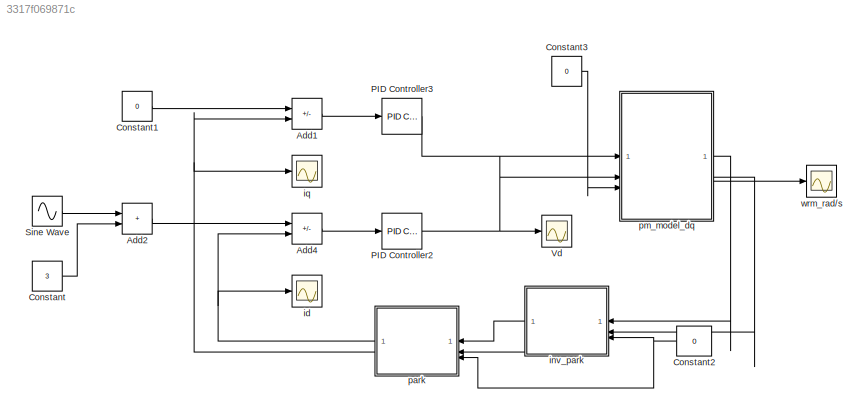
MODEL slx_3317f069871c
KIND model
CONFIG AbsTol = auto
CONFIG EnableMultiTasking = off
CONFIG FixedStep = 0.00025
CONFIG MaxStep = auto
CONFIG MinStep = auto
CONFIG RelTol = 1e-3
CONFIG SampleTimeConstraint = Unconstrained
CONFIG SolverName = FixedStepAuto
CONFIG StartTime = 0.0
CONFIG StopTime = 0.2
BLOCK [Sum] Add1
  IconShape = rectangular
  Inputs = +-
BLOCK [Sum] Add2
  IconShape = rectangular
BLOCK [Sum] Add4
  IconShape = rectangular
  Inputs = +-
BLOCK [Constant] Constant
  Value = 3
BLOCK [Constant] Constant1
  Value = 0
BLOCK [Constant] Constant2
  Value = 0
BLOCK [Constant] Constant3
  Value = 0
BLOCK [Reference] PID Controller2  REF=slpidlib/PID Controller
  LibrarySourceBlock = simulink/Continuous/PID Controller
  SourceBlock = slpidlib/PID Controller
  SourceType = PID 1dof
BLOCK [Reference] PID Controller3  REF=slpidlib/PID Controller
  LibrarySourceBlock = simulink/Continuous/PID Controller
  SourceBlock = slpidlib/PID Controller
  SourceType = PID 1dof
BLOCK [Sin] Sine Wave
  Frequency = 2*pi*100
  SampleTime = 0
BLOCK [Scope] Vd
  Floating = off
  NumInputPorts = 1
  ScopeSpecificationString = Simulink.scopes.TimeScopeBlockCfg('CurrentConfiguration', extmgr.ConfigurationSet(extmgr.Configuration('Core','General UI',true,'FigureColor',[1 1 1]),extmgr.Configuration('Core','Source UI',true),extmgr.Configuration('Sources','WiredSimulink',true,'DataLoggingVariableName','ScopeData1'),extmgr.Configuration('Visuals','Time Domain',true,'SerializedDisplays',{struct('MinYLimReal','0.09342','MaxYLim...<+1561ch>
BLOCK [Scope] id
  Floating = off
  NumInputPorts = 1
  ScopeSpecificationString = Simulink.scopes.TimeScopeBlockCfg('CurrentConfiguration', extmgr.ConfigurationSet(extmgr.Configuration('Core','General UI',true,'FigureColor',[1 1 1]),extmgr.Configuration('Core','Source UI',true),extmgr.Configuration('Sources','WiredSimulink',true,'DataLoggingVariableName','ScopeData4'),extmgr.Configuration('Visuals','Time Domain',true,'SerializedDisplays',{struct('MinYLimReal','2.04049','MaxYLim...<+1556ch>
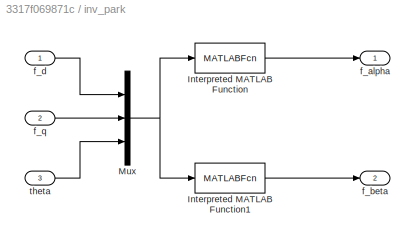
BLOCK [SubSystem] inv_park
BLOCK [MATLABFcn] inv_park/Interpreted MATLAB Function
  MATLABFcn = cos(u(3))*u(1)-sin(u(3))*u(2)
BLOCK [MATLABFcn] inv_park/Interpreted MATLAB Function1
  MATLABFcn = sin(u(3))*u(1)+cos(u(3))*u(2)
BLOCK [Mux] inv_park/Mux
  DisplayOption = bar
  Inputs = 3
BLOCK [Outport] inv_park/f_alpha
BLOCK [Outport] inv_park/f_beta
  Port = 2
BLOCK [Inport] inv_park/f_d
BLOCK [Inport] inv_park/f_q
  Port = 2
BLOCK [Inport] inv_park/theta
  Port = 3
BLOCK [Scope] iq
  Floating = off
  NumInputPorts = 1
  ScopeSpecificationString = Simulink.scopes.TimeScopeBlockCfg('CurrentConfiguration', extmgr.ConfigurationSet(extmgr.Configuration('Core','General UI',true,'FigureColor',[1 1 1]),extmgr.Configuration('Core','Source UI',true),extmgr.Configuration('Sources','WiredSimulink',true,'DataLoggingVariableName','ScopeData1'),extmgr.Configuration('Visuals','Time Domain',true,'SerializedDisplays',{struct('MinYLimReal','-0.70231','MaxYLi...<+1565ch>
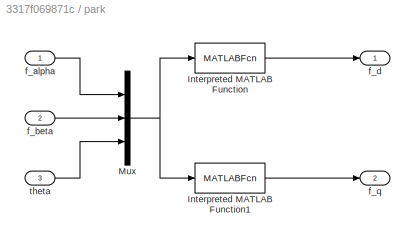
BLOCK [SubSystem] park
BLOCK [MATLABFcn] park/Interpreted MATLAB Function
  MATLABFcn = cos(u(3))*u(1)+sin(u(3))*u(2)
BLOCK [MATLABFcn] park/Interpreted MATLAB Function1
  MATLABFcn = -sin(u(3))*u(1)+cos(u(3))*u(2)
BLOCK [Mux] park/Mux
  DisplayOption = bar
  Inputs = 3
BLOCK [Inport] park/f_alpha
BLOCK [Inport] park/f_beta
  Port = 2
BLOCK [Outport] park/f_d
BLOCK [Outport] park/f_q
  Port = 2
BLOCK [Inport] park/theta
  Port = 3
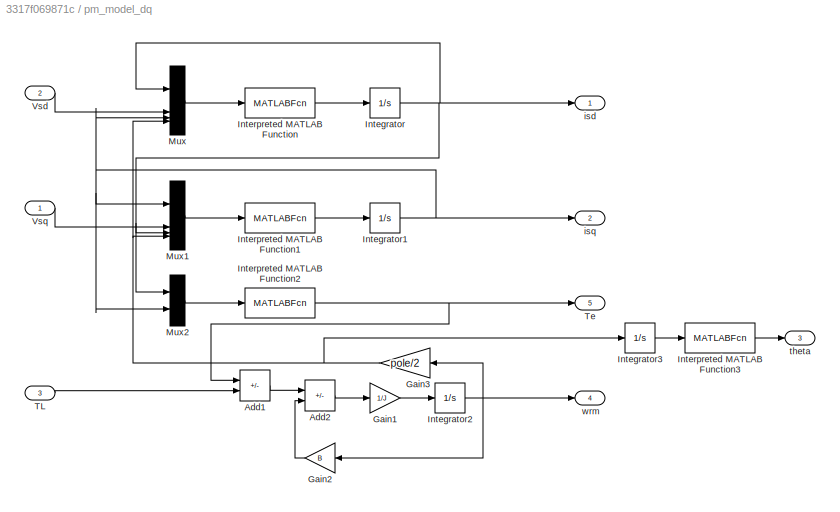
BLOCK [SubSystem] pm_model_dq
BLOCK [Sum] pm_model_dq/Add1
  IconShape = rectangular
  Inputs = +-
BLOCK [Sum] pm_model_dq/Add2
  IconShape = rectangular
  Inputs = +-
BLOCK [Gain] pm_model_dq/Gain1
  Gain = 1/J
BLOCK [Gain] pm_model_dq/Gain2
  Gain = B
  NameLocation = top
BLOCK [Gain] pm_model_dq/Gain3
  Gain = pole/2
BLOCK [Integrator] pm_model_dq/Integrator
BLOCK [Integrator] pm_model_dq/Integrator1
BLOCK [Integrator] pm_model_dq/Integrator2
BLOCK [Integrator] pm_model_dq/Integrator3
BLOCK [MATLABFcn] pm_model_dq/Interpreted MATLAB Function
  MATLABFcn = -(Rs/Ld)*u(1) + (Lq/Ld)*u(3)*u(4) + u(2)/Ld
BLOCK [MATLABFcn] pm_model_dq/Interpreted MATLAB Function1
  MATLABFcn = -(Rs/Lq)*u(1) - (Ld/Lq)*u(3)*u(4) - (Lamda_f/Lq)*u(4) + u(2)/Lq
BLOCK [MATLABFcn] pm_model_dq/Interpreted MATLAB Function2
  MATLABFcn = 3/2*(pole/2)*(Lamda_f*u(2) + (Ld-Lq)*u(1)*u(2))
BLOCK [MATLABFcn] pm_model_dq/Interpreted MATLAB Function3
  MATLABFcn = mod(u, 2*pi)
BLOCK [Mux] pm_model_dq/Mux
  DisplayOption = bar
BLOCK [Mux] pm_model_dq/Mux1
  DisplayOption = bar
BLOCK [Mux] pm_model_dq/Mux2
  DisplayOption = bar
  Inputs = 2
BLOCK [Inport] pm_model_dq/TL
  Port = 3
BLOCK [Outport] pm_model_dq/Te
  Port = 5
BLOCK [Inport] pm_model_dq/Vsd
  Port = 2
BLOCK [Inport] pm_model_dq/Vsq
BLOCK [Outport] pm_model_dq/isd
BLOCK [Outport] pm_model_dq/isq
  Port = 2
BLOCK [Outport] pm_model_dq/theta
  Port = 3
BLOCK [Outport] pm_model_dq/wrm
  Port = 4
BLOCK [Scope] wrm_rad//s
  Floating = off
  NumInputPorts = 1
  ScopeSpecificationString = Simulink.scopes.TimeScopeBlockCfg('CurrentConfiguration', extmgr.ConfigurationSet(extmgr.Configuration('Core','General UI',true,'FigureColor',[1 1 1]),extmgr.Configuration('Core','Source UI',true),extmgr.Configuration('Sources','WiredSimulink',true),extmgr.Configuration('Visuals','Time Domain',true,'SerializedDisplays',{struct('MinYLimReal','-1.00000','MaxYLimReal','1.00000','YLabelReal','','MinYL...<+1526ch>
LINE Add1:1 -> PID Controller3:1
LINE Add2:1 -> Add4:1
LINE Add4:1 -> PID Controller2:1
LINE Constant1:1 -> Add1:1
NET Constant2:1 -> inv_park:3, park:3
LINE Constant3:1 -> pm_model_dq:3
LINE Constant:1 -> Add2:2
NET PID Controller2:1 -> Vd:1, pm_model_dq:2
LINE PID Controller3:1 -> pm_model_dq:1
LINE Sine Wave:1 -> Add2:1
LINE inv_park/Interpreted MATLAB Function1:1 -> inv_park/f_beta:1
LINE inv_park/Interpreted MATLAB Function:1 -> inv_park/f_alpha:1
NET inv_park/Mux:1 -> inv_park/Interpreted MATLAB Function1:1, inv_park/Interpreted MATLAB Function:1
LINE inv_park/f_d:1 -> inv_park/Mux:1
LINE inv_park/f_q:1 -> inv_park/Mux:2
LINE inv_park/theta:1 -> inv_park/Mux:3
LINE inv_park:1 -> park:1
LINE inv_park:2 -> park:2
LINE park/Interpreted MATLAB Function1:1 -> park/f_q:1
LINE park/Interpreted MATLAB Function:1 -> park/f_d:1
NET park/Mux:1 -> park/Interpreted MATLAB Function1:1, park/Interpreted MATLAB Function:1
LINE park/f_alpha:1 -> park/Mux:1
LINE park/f_beta:1 -> park/Mux:2
LINE park/theta:1 -> park/Mux:3
NET park:1 -> Add4:2, id:1
NET park:2 -> Add1:2, iq:1
LINE pm_model_dq/Add1:1 -> pm_model_dq/Add2:1
LINE pm_model_dq/Add2:1 -> pm_model_dq/Gain1:1
LINE pm_model_dq/Gain1:1 -> pm_model_dq/Integrator2:1
LINE pm_model_dq/Gain2:1 -> pm_model_dq/Add2:2
NET pm_model_dq/Gain3:1 -> pm_model_dq/Integrator3:1, pm_model_dq/Mux1:4, pm_model_dq/Mux:4
NET pm_model_dq/Integrator1:1 -> pm_model_dq/Mux1:1, pm_model_dq/Mux2:2, pm_model_dq/Mux:3, pm_model_dq/isq:1
NET pm_model_dq/Integrator2:1 -> pm_model_dq/Gain2:1, pm_model_dq/Gain3:1, pm_model_dq/wrm:1
LINE pm_model_dq/Integrator3:1 -> pm_model_dq/Interpreted MATLAB Function3:1
NET pm_model_dq/Integrator:1 -> pm_model_dq/Mux1:3, pm_model_dq/Mux2:1, pm_model_dq/Mux:1, pm_model_dq/isd:1
LINE pm_model_dq/Interpreted MATLAB Function1:1 -> pm_model_dq/Integrator1:1
NET pm_model_dq/Interpreted MATLAB Function2:1 -> pm_model_dq/Add1:1, pm_model_dq/Te:1
LINE pm_model_dq/Interpreted MATLAB Function3:1 -> pm_model_dq/theta:1
LINE pm_model_dq/Interpreted MATLAB Function:1 -> pm_model_dq/Integrator:1
LINE pm_model_dq/Mux1:1 -> pm_model_dq/Interpreted MATLAB Function1:1
LINE pm_model_dq/Mux2:1 -> pm_model_dq/Interpreted MATLAB Function2:1
LINE pm_model_dq/Mux:1 -> pm_model_dq/Interpreted MATLAB Function:1
LINE pm_model_dq/TL:1 -> pm_model_dq/Add1:2
LINE pm_model_dq/Vsd:1 -> pm_model_dq/Mux:2
LINE pm_model_dq/Vsq:1 -> pm_model_dq/Mux1:2
LINE pm_model_dq:1 -> inv_park:1
LINE pm_model_dq:2 -> inv_park:2
LINE pm_model_dq:4 -> wrm_rad//s:1
note: NET lines group one-source signal fan-out (src -> all destinations, sorted); 1:1 wires keep LINE
